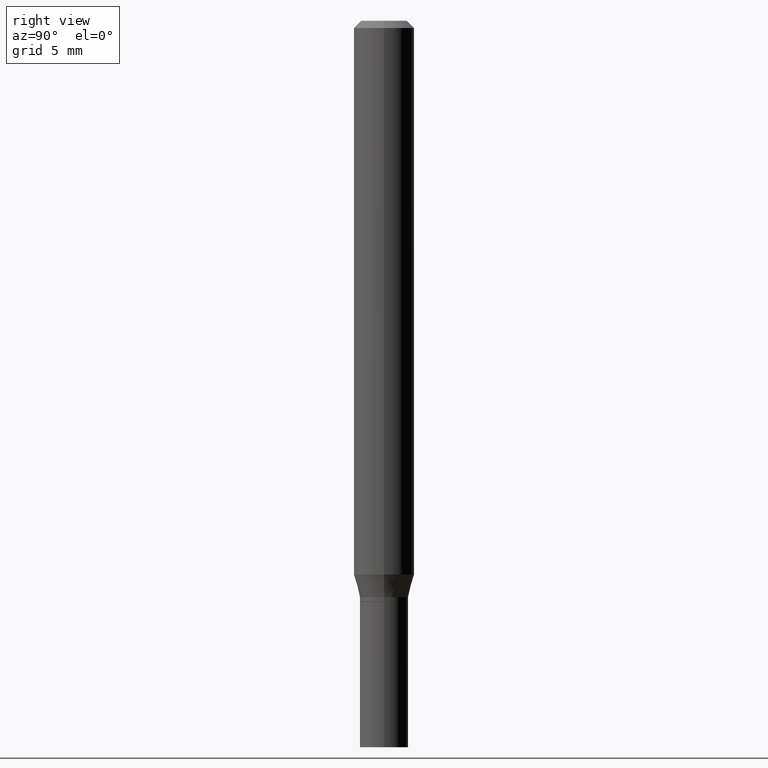
[diagram: clean part render]
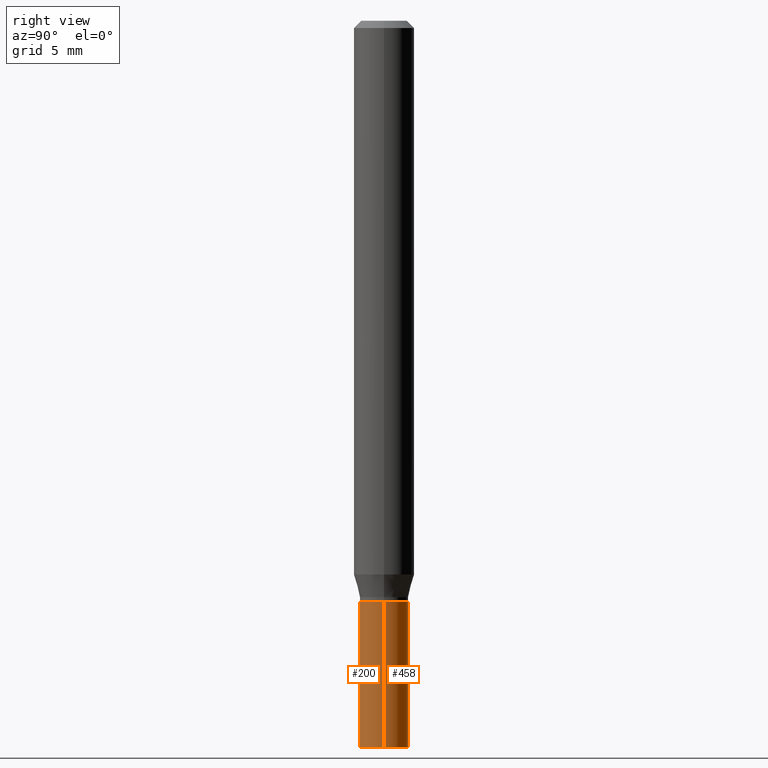
[diagram: same view with one multi-face feature highlighted, each face labeled with its STEP entity id]
A machine part, right view. The highlighted faces form ONE feature: a constant-radius fillet chain: 2 tangent blend faces with common blend radius 1.27 mm. The faces share edges in the B-rep.
Their STEP definitions:
[1] entity #200 (Cylinder):
#11 = ORIENTED_EDGE ( 'NONE', *, *, #244, .T. ) ;
#18 = EDGE_CURVE ( 'NONE', #168, #96, #407, .T. ) ;
#34 = DIRECTION ( 'NONE',  ( -2.445468806185136597E-29, 3.491481338843145583E-15, 1.000000000000000000 ) ) ;
#35 = CARTESIAN_POINT ( 'NONE',  ( -0.05000000000000000278, -4.358228439558196976E-15, -1.500000000000000222 ) ) ;
#36 = CARTESIAN_POINT ( 'NONE',  ( -0.05000000000000000278, 3.552713678800501127E-16, -2.459467545127453311E-30 ) ) ;
#39 = AXIS2_PLACEMENT_3D ( 'NONE', #185, #34, #214 ) ;
#42 = ORIENTED_EDGE ( 'NONE', *, *, #391, .F. ) ;
#51 = EDGE_CURVE ( 'NONE', #140, #356, #397, .T. ) ;
#58 = EDGE_LOOP ( 'NONE', ( #387, #11, #61, #42 ) ) ;
#61 = ORIENTED_EDGE ( 'NONE', *, *, #51, .T. ) ;
#68 = DIRECTION ( 'NONE',  ( -2.445468806185136877E-29, 3.491481338843145188E-15, 1.000000000000000000 ) ) ;
#72 = CARTESIAN_POINT ( 'NONE',  ( 0.05000000000000000278, -3.491481338843133848E-16, 2.438088387897968247E-30 ) ) ;
#96 = VERTEX_POINT ( 'NONE', #268 ) ;
#123 = CARTESIAN_POINT ( 'NONE',  ( 0.05000000000000000278, -5.586370142149032301E-15, -1.500000000000000222 ) ) ;
#140 = VERTEX_POINT ( 'NONE', #123 ) ;
#148 = AXIS2_PLACEMENT_3D ( 'NONE', #406, #362, #307 ) ;
#151 = CYLINDRICAL_SURFACE ( 'NONE', #148, 0.05000000000000000278 ) ;
#168 = VERTEX_POINT ( 'NONE', #35 ) ;
#185 = CARTESIAN_POINT ( 'NONE',  ( 2.934562567422164701E-29, -4.189777606611775804E-15, -1.200000000000000178 ) ) ;
#200 = ADVANCED_FACE ( 'NONE', ( #394 ), #151, .T. ) ;
#212 = VECTOR ( 'NONE', #437, 39.37007874015748143 ) ;
#214 = DIRECTION ( 'NONE',  ( 1.000000000000000000, -6.982962677686274599E-15, 0.000000000000000000 ) ) ;
#219 = DIRECTION ( 'NONE',  ( 1.000000000000000000, -6.982962677686274599E-15, 0.000000000000000000 ) ) ;
#244 = EDGE_CURVE ( 'NONE', #168, #140, #423, .T. ) ;
#254 = AXIS2_PLACEMENT_3D ( 'NONE', #331, #376, #219 ) ;
#268 = CARTESIAN_POINT ( 'NONE',  ( -0.05000000000000000278, -4.358228439558196976E-15, -1.200000000000000178 ) ) ;
#293 = VECTOR ( 'NONE', #68, 39.37007874015748143 ) ;
#307 = DIRECTION ( 'NONE',  ( 1.000000000000000000, -6.982962677686267499E-15, 4.876176775795936353E-29 ) ) ;
#331 = CARTESIAN_POINT ( 'NONE',  ( 3.668203209277704895E-29, -5.237222008264718177E-15, -1.500000000000000222 ) ) ;
#356 = VERTEX_POINT ( 'NONE', #364 ) ;
#358 = CIRCLE ( 'NONE', #39, 0.05000000000000000278 ) ;
#362 = DIRECTION ( 'NONE',  ( -2.445468806185136597E-29, 3.491481338843145583E-15, 1.000000000000000000 ) ) ;
#364 = CARTESIAN_POINT ( 'NONE',  ( 0.05000000000000000278, -4.538925740496089139E-15, -1.200000000000000178 ) ) ;
#376 = DIRECTION ( 'NONE',  ( -2.445468806185136597E-29, 3.491481338843145583E-15, 1.000000000000000000 ) ) ;
#387 = ORIENTED_EDGE ( 'NONE', *, *, #18, .F. ) ;
#391 = EDGE_CURVE ( 'NONE', #96, #356, #358, .T. ) ;
#394 = FACE_OUTER_BOUND ( 'NONE', #58, .T. ) ;
#397 = LINE ( 'NONE', #72, #212 ) ;
#406 = CARTESIAN_POINT ( 'NONE',  ( 0.000000000000000000, 0.000000000000000000, 0.000000000000000000 ) ) ;
#407 = LINE ( 'NONE', #36, #293 ) ;
#423 = CIRCLE ( 'NONE', #254, 0.05000000000000000278 ) ;
#437 = DIRECTION ( 'NONE',  ( -2.445468806185136877E-29, 3.491481338843145188E-15, 1.000000000000000000 ) ) ;
[2] entity #458 (Cylinder):
#18 = EDGE_CURVE ( 'NONE', #168, #96, #407, .T. ) ;
#35 = CARTESIAN_POINT ( 'NONE',  ( -0.05000000000000000278, -4.358228439558196976E-15, -1.500000000000000222 ) ) ;
#36 = CARTESIAN_POINT ( 'NONE',  ( -0.05000000000000000278, 3.552713678800501127E-16, -2.459467545127453311E-30 ) ) ;
#51 = EDGE_CURVE ( 'NONE', #140, #356, #397, .T. ) ;
#60 = ORIENTED_EDGE ( 'NONE', *, *, #18, .T. ) ;
#68 = DIRECTION ( 'NONE',  ( -2.445468806185136877E-29, 3.491481338843145188E-15, 1.000000000000000000 ) ) ;
#72 = CARTESIAN_POINT ( 'NONE',  ( 0.05000000000000000278, -3.491481338843133848E-16, 2.438088387897968247E-30 ) ) ;
#85 = ORIENTED_EDGE ( 'NONE', *, *, #51, .F. ) ;
#88 = CIRCLE ( 'NONE', #286, 0.05000000000000000278 ) ;
#96 = VERTEX_POINT ( 'NONE', #268 ) ;
#99 = AXIS2_PLACEMENT_3D ( 'NONE', #142, #228, #261 ) ;
#111 = EDGE_LOOP ( 'NONE', ( #349, #60, #454, #85 ) ) ;
#123 = CARTESIAN_POINT ( 'NONE',  ( 0.05000000000000000278, -5.586370142149032301E-15, -1.500000000000000222 ) ) ;
#137 = FACE_OUTER_BOUND ( 'NONE', #111, .T. ) ;
#140 = VERTEX_POINT ( 'NONE', #123 ) ;
#142 = CARTESIAN_POINT ( 'NONE',  ( 3.668203209277704895E-29, -5.237222008264718177E-15, -1.500000000000000222 ) ) ;
#168 = VERTEX_POINT ( 'NONE', #35 ) ;
#177 = DIRECTION ( 'NONE',  ( -2.445468806185136597E-29, 3.491481338843145583E-15, 1.000000000000000000 ) ) ;
#212 = VECTOR ( 'NONE', #437, 39.37007874015748143 ) ;
#228 = DIRECTION ( 'NONE',  ( -2.445468806185136597E-29, 3.491481338843145583E-15, 1.000000000000000000 ) ) ;
#252 = DIRECTION ( 'NONE',  ( -2.445468806185136597E-29, 3.491481338843145583E-15, 1.000000000000000000 ) ) ;
#261 = DIRECTION ( 'NONE',  ( 1.000000000000000000, -6.982962677686274599E-15, 0.000000000000000000 ) ) ;
#268 = CARTESIAN_POINT ( 'NONE',  ( -0.05000000000000000278, -4.358228439558196976E-15, -1.200000000000000178 ) ) ;
#286 = AXIS2_PLACEMENT_3D ( 'NONE', #388, #252, #455 ) ;
#293 = VECTOR ( 'NONE', #68, 39.37007874015748143 ) ;
#311 = EDGE_CURVE ( 'NONE', #356, #96, #88, .T. ) ;
#338 = DIRECTION ( 'NONE',  ( 1.000000000000000000, -6.982962677686267499E-15, 4.876176775795936353E-29 ) ) ;
#349 = ORIENTED_EDGE ( 'NONE', *, *, #414, .T. ) ;
#356 = VERTEX_POINT ( 'NONE', #364 ) ;
#364 = CARTESIAN_POINT ( 'NONE',  ( 0.05000000000000000278, -4.538925740496089139E-15, -1.200000000000000178 ) ) ;
#377 = CIRCLE ( 'NONE', #99, 0.05000000000000000278 ) ;
#388 = CARTESIAN_POINT ( 'NONE',  ( 2.934562567422164701E-29, -4.189777606611775804E-15, -1.200000000000000178 ) ) ;
#397 = LINE ( 'NONE', #72, #212 ) ;
#405 = CARTESIAN_POINT ( 'NONE',  ( 0.000000000000000000, 0.000000000000000000, 0.000000000000000000 ) ) ;
#407 = LINE ( 'NONE', #36, #293 ) ;
#414 = EDGE_CURVE ( 'NONE', #140, #168, #377, .T. ) ;
#435 = AXIS2_PLACEMENT_3D ( 'NONE', #405, #177, #338 ) ;
#437 = DIRECTION ( 'NONE',  ( -2.445468806185136877E-29, 3.491481338843145188E-15, 1.000000000000000000 ) ) ;
#454 = ORIENTED_EDGE ( 'NONE', *, *, #311, .F. ) ;
#455 = DIRECTION ( 'NONE',  ( 1.000000000000000000, -6.982962677686274599E-15, 0.000000000000000000 ) ) ;
#458 = ADVANCED_FACE ( 'NONE', ( #137 ), #465, .T. ) ;
#465 = CYLINDRICAL_SURFACE ( 'NONE', #435, 0.05000000000000000278 ) ;